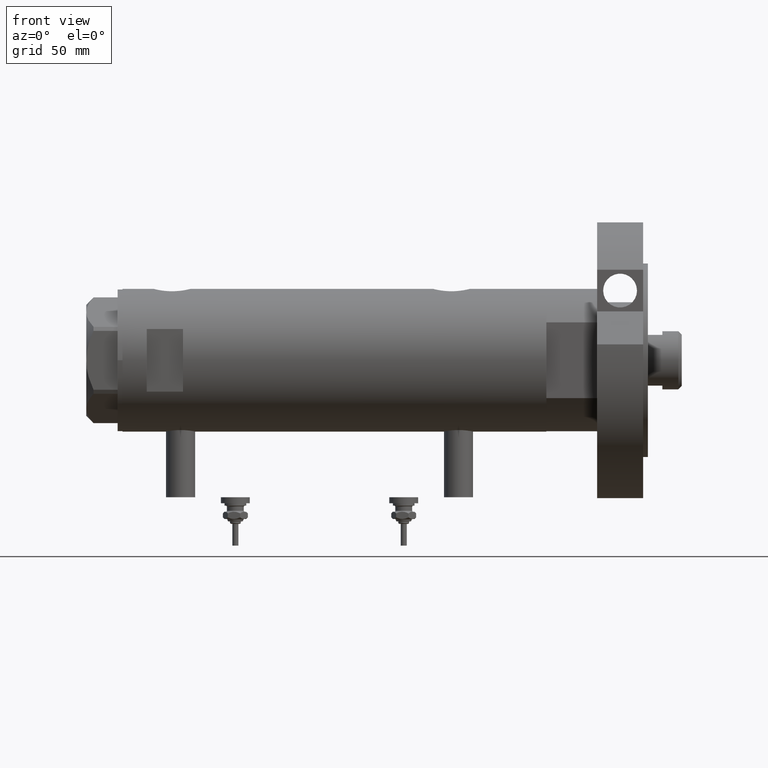
[diagram: clean part render]
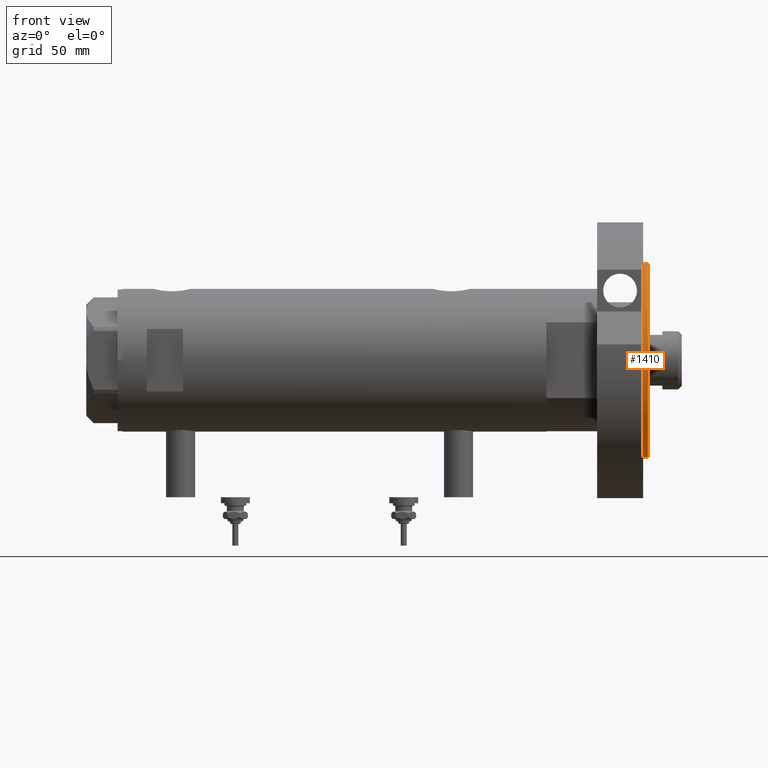
[diagram: same view with one face highlighted and labeled with its STEP entity id]
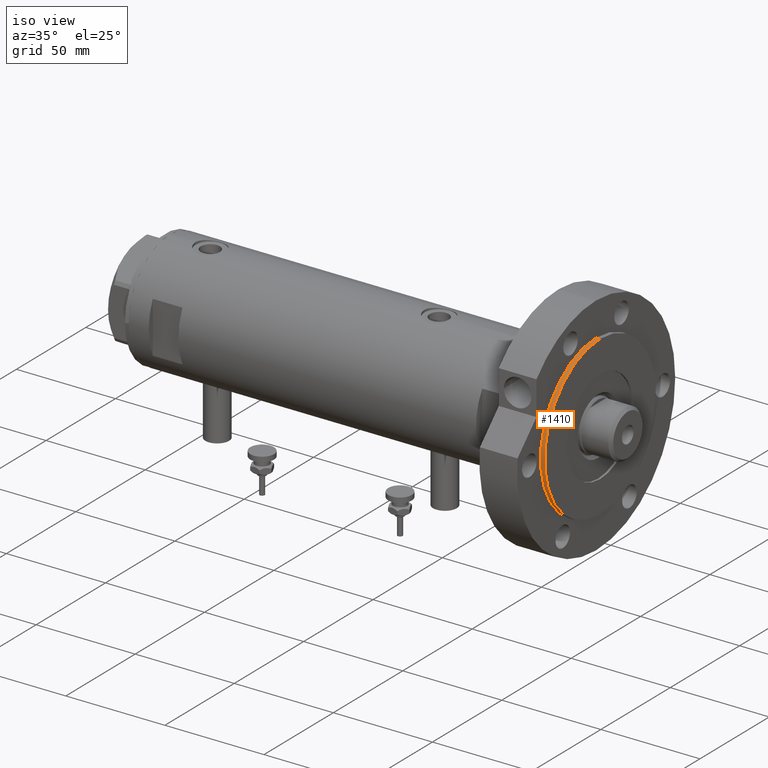
[diagram: same view with one face highlighted and labeled with its STEP entity id]
A machine part, front view. The second image highlights one B-rep face of the part: STEP entity #1410.
A second angle (iso view) of the same face is appended — the face is thin or edge-on in the first view.
In plain terms, the highlighted cylindrical surface (partial cylindrical patch) has radius 40 mm, axis along (-1, -0, 0).
Its self-contained STEP definition (entity closure, byte-faithful):
#108 = CIRCLE ( 'NONE', #3038, 40.00000000000000000 ) ;
#162 = CARTESIAN_POINT ( 'NONE',  ( 0.000000000000000000, 0.000000000000000000, 20.99999999999999645 ) ) ;
#262 = CARTESIAN_POINT ( 'NONE',  ( -40.00000000000000000, 0.000000000000000000, 20.99999999999999645 ) ) ;
#543 = CARTESIAN_POINT ( 'NONE',  ( -40.00000000000000000, 0.000000000000000000, 20.99999999999999645 ) ) ;
#585 = VERTEX_POINT ( 'NONE', #262 ) ;
#604 = CIRCLE ( 'NONE', #5633, 40.00000000000000000 ) ;
#746 = DIRECTION ( 'NONE',  ( -1.000000000000000000, 0.000000000000000000, 0.000000000000000000 ) ) ;
#1063 = DIRECTION ( 'NONE',  ( -0.000000000000000000, -0.000000000000000000, -1.000000000000000000 ) ) ;
#1079 = DIRECTION ( 'NONE',  ( 0.000000000000000000, 0.000000000000000000, 1.000000000000000000 ) ) ;
#1410 = ADVANCED_FACE ( 'NONE', ( #5584 ), #2083, .T. ) ;
#1465 = CARTESIAN_POINT ( 'NONE',  ( 0.000000000000000000, 0.000000000000000000, 19.00000000000000000 ) ) ;
#2083 = CYLINDRICAL_SURFACE ( 'NONE', #7206, 40.00000000000000000 ) ;
#2261 = EDGE_CURVE ( 'NONE', #4326, #4535, #108, .T. ) ;
#2416 = EDGE_CURVE ( 'NONE', #6819, #585, #604, .T. ) ;
#2469 = DIRECTION ( 'NONE',  ( -0.000000000000000000, -0.000000000000000000, -1.000000000000000000 ) ) ;
#2724 = CARTESIAN_POINT ( 'NONE',  ( 40.00000000000000000, 4.898587196589413026E-15, 20.99999999999999645 ) ) ;
#3038 = AXIS2_PLACEMENT_3D ( 'NONE', #1465, #4239, #3662 ) ;
#3222 = EDGE_CURVE ( 'NONE', #6819, #4326, #5817, .T. ) ;
#3488 = DIRECTION ( 'NONE',  ( 1.000000000000000000, 0.000000000000000000, 0.000000000000000000 ) ) ;
#3662 = DIRECTION ( 'NONE',  ( 1.000000000000000000, 0.000000000000000000, 0.000000000000000000 ) ) ;
#4048 = CARTESIAN_POINT ( 'NONE',  ( 0.000000000000000000, 0.000000000000000000, 20.99999999999999645 ) ) ;
#4239 = DIRECTION ( 'NONE',  ( 0.000000000000000000, 0.000000000000000000, 1.000000000000000000 ) ) ;
#4256 = ORIENTED_EDGE ( 'NONE', *, *, #2261, .T. ) ;
#4326 = VERTEX_POINT ( 'NONE', #5762 ) ;
#4372 = ORIENTED_EDGE ( 'NONE', *, *, #2416, .F. ) ;
#4528 = VECTOR ( 'NONE', #1063, 1000.000000000000000 ) ;
#4535 = VERTEX_POINT ( 'NONE', #7468 ) ;
#5136 = ORIENTED_EDGE ( 'NONE', *, *, #6809, .F. ) ;
#5193 = EDGE_LOOP ( 'NONE', ( #4372, #7114, #4256, #5136 ) ) ;
#5215 = CARTESIAN_POINT ( 'NONE',  ( 40.00000000000000000, 4.898587196589413026E-15, 20.99999999999999645 ) ) ;
#5584 = FACE_OUTER_BOUND ( 'NONE', #5193, .T. ) ;
#5633 = AXIS2_PLACEMENT_3D ( 'NONE', #4048, #1079, #3488 ) ;
#5762 = CARTESIAN_POINT ( 'NONE',  ( 40.00000000000000000, 4.898587196589413026E-15, 19.00000000000000000 ) ) ;
#5817 = LINE ( 'NONE', #2724, #4528 ) ;
#5820 = LINE ( 'NONE', #543, #6124 ) ;
#6124 = VECTOR ( 'NONE', #6449, 1000.000000000000000 ) ;
#6449 = DIRECTION ( 'NONE',  ( -0.000000000000000000, -0.000000000000000000, -1.000000000000000000 ) ) ;
#6809 = EDGE_CURVE ( 'NONE', #585, #4535, #5820, .T. ) ;
#6819 = VERTEX_POINT ( 'NONE', #5215 ) ;
#7114 = ORIENTED_EDGE ( 'NONE', *, *, #3222, .T. ) ;
#7206 = AXIS2_PLACEMENT_3D ( 'NONE', #162, #2469, #746 ) ;
#7468 = CARTESIAN_POINT ( 'NONE',  ( -40.00000000000000000, 0.000000000000000000, 19.00000000000000000 ) ) ;